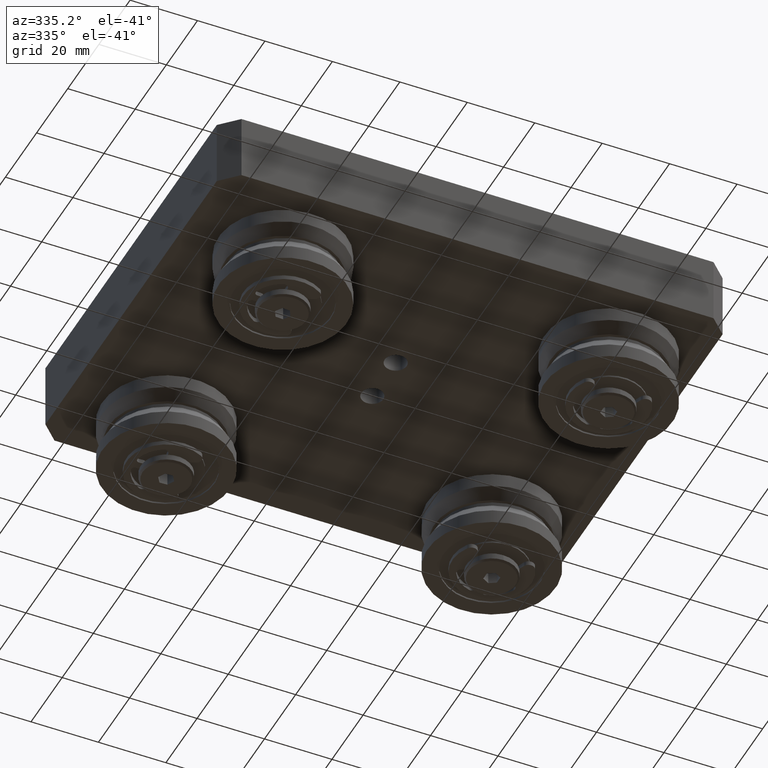
[diagram: clean part render]
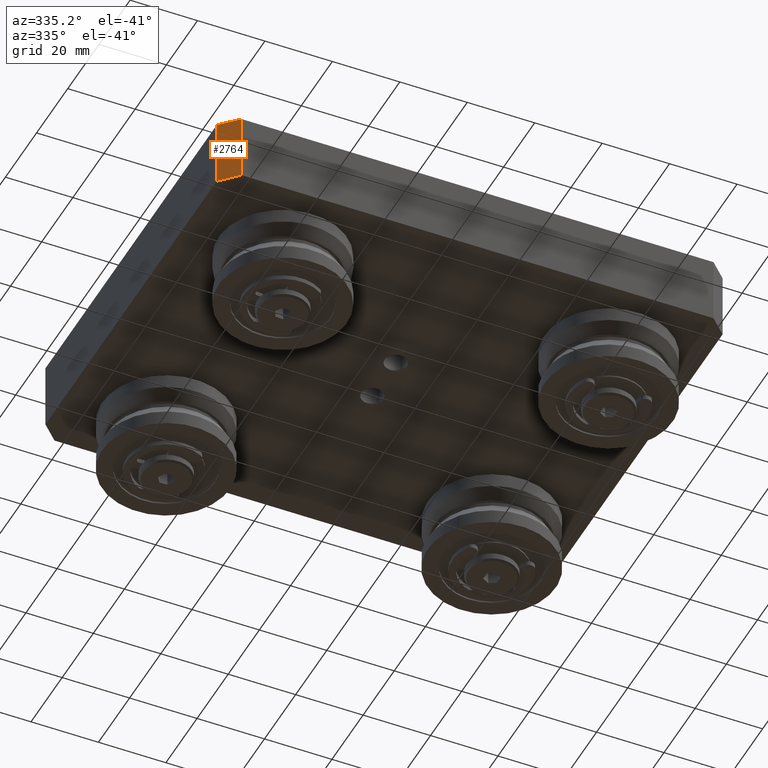
[diagram: same view with one face highlighted and labeled with its STEP entity id]
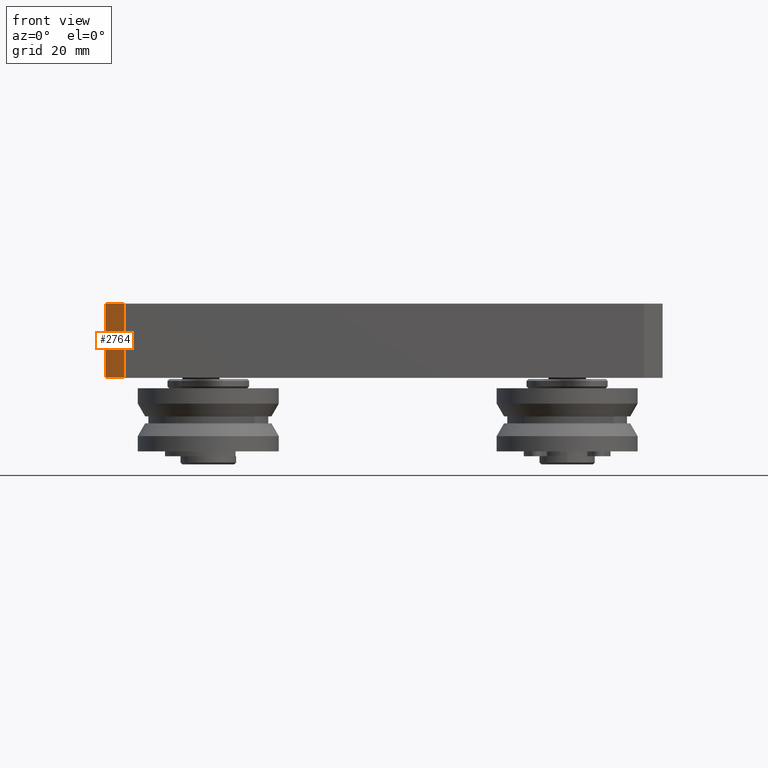
[diagram: same view with one face highlighted and labeled with its STEP entity id]
A machine part, auxiliary view. The second image highlights one B-rep face of the part: STEP entity #2764.
A second angle (front view) of the same face is appended — the face is thin or edge-on in the first view.
In plain terms, the highlighted planar face has unit normal (-0.7071, -0.7071, 0).
Its self-contained STEP definition (entity closure, byte-faithful):
#425=FACE_OUTER_BOUND('',#612,.T.);
#612=EDGE_LOOP('',(#1914,#1915,#1916,#1917));
#826=LINE('',#4443,#1039);
#833=LINE('',#4456,#1046);
#841=LINE('',#4485,#1054);
#842=LINE('',#4486,#1055);
#1039=VECTOR('',#3512,10.);
#1046=VECTOR('',#3521,10.);
#1054=VECTOR('',#3549,10.);
#1055=VECTOR('',#3550,10.);
#1251=VERTEX_POINT('',#4440);
#1252=VERTEX_POINT('',#4442);
#1257=VERTEX_POINT('',#4454);
#1268=VERTEX_POINT('',#4484);
#1496=EDGE_CURVE('',#1252,#1251,#826,.T.);
#1503=EDGE_CURVE('',#1251,#1257,#833,.T.);
#1517=EDGE_CURVE('',#1268,#1252,#841,.T.);
#1518=EDGE_CURVE('',#1257,#1268,#842,.T.);
#1914=ORIENTED_EDGE('',*,*,#1517,.T.);
#1915=ORIENTED_EDGE('',*,*,#1496,.T.);
#1916=ORIENTED_EDGE('',*,*,#1503,.T.);
#1917=ORIENTED_EDGE('',*,*,#1518,.T.);
#2664=PLANE('',#3155);
#2764=ADVANCED_FACE('',(#425),#2664,.T.);
#3155=AXIS2_PLACEMENT_3D('',#4483,#3547,#3548);
#3512=DIRECTION('',(0.,0.,-1.));
#3521=DIRECTION('',(0.707106781186548,-0.707106781186548,0.));
#3547=DIRECTION('center_axis',(-0.707106781186548,-0.707106781186548,0.));
#3548=DIRECTION('ref_axis',(0.,0.,1.));
#3549=DIRECTION('',(-0.707106781186548,0.707106781186548,0.));
#3550=DIRECTION('',(0.,0.,1.));
#4440=CARTESIAN_POINT('',(-75.,-55.,0.));
#4442=CARTESIAN_POINT('',(-75.,-55.,20.));
#4443=CARTESIAN_POINT('',(-75.,-55.,0.));
#4454=CARTESIAN_POINT('',(-70.,-60.,0.));
#4456=CARTESIAN_POINT('',(-68.75,-61.25,0.));
#4483=CARTESIAN_POINT('Origin',(-72.5,-57.5,0.));
#4484=CARTESIAN_POINT('',(-70.,-60.,20.));
#4485=CARTESIAN_POINT('',(-68.75,-61.25,20.));
#4486=CARTESIAN_POINT('',(-70.,-60.,0.));